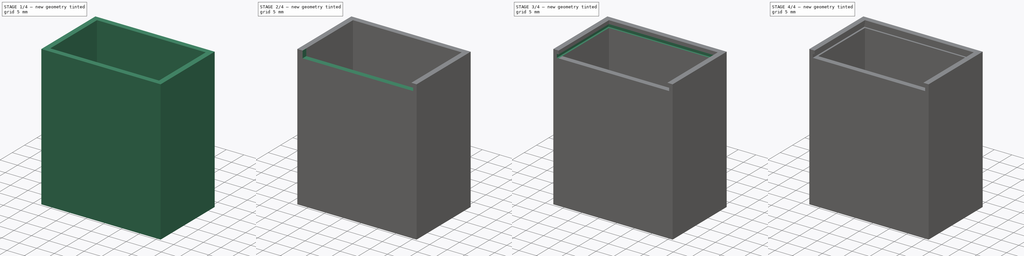
[diagram: build sequence overview — one tinted view per stage of 4, left to right]
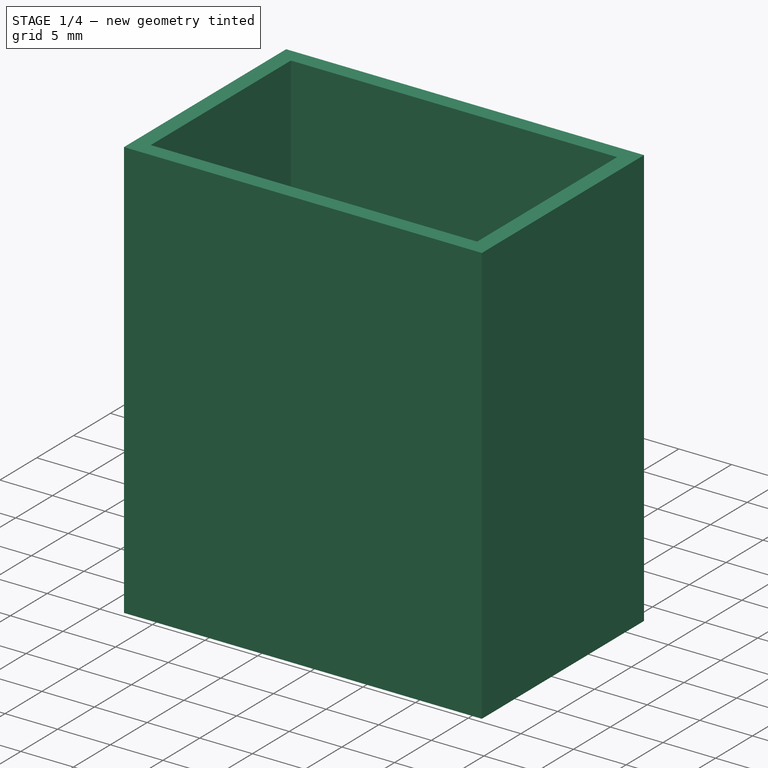
[diagram: stage 1 of 4 — iso view after this stage's code; geometry added in this stage tinted green]
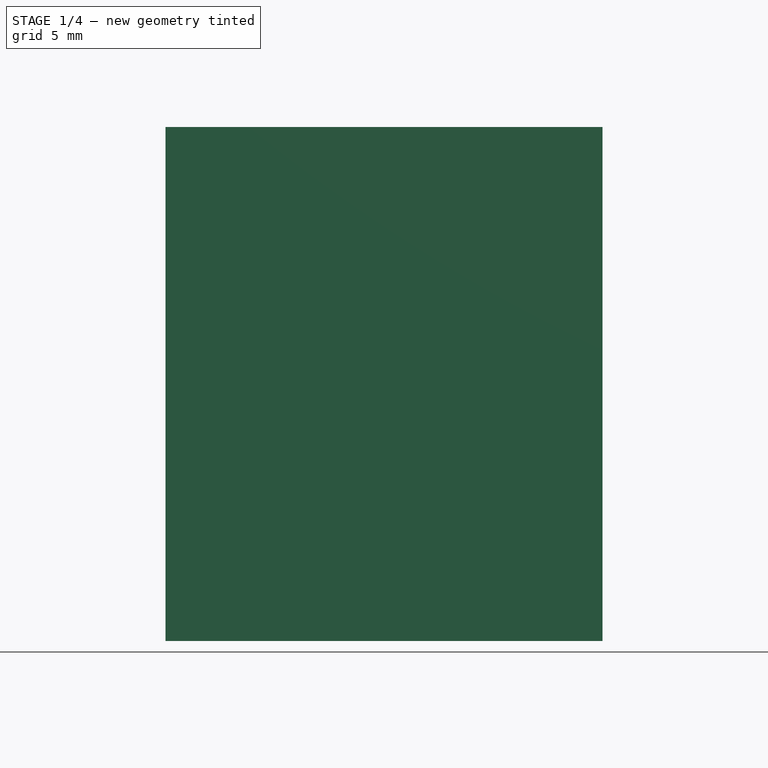
[diagram: stage 1 of 4 — front view after this stage's code; geometry added in this stage tinted green]
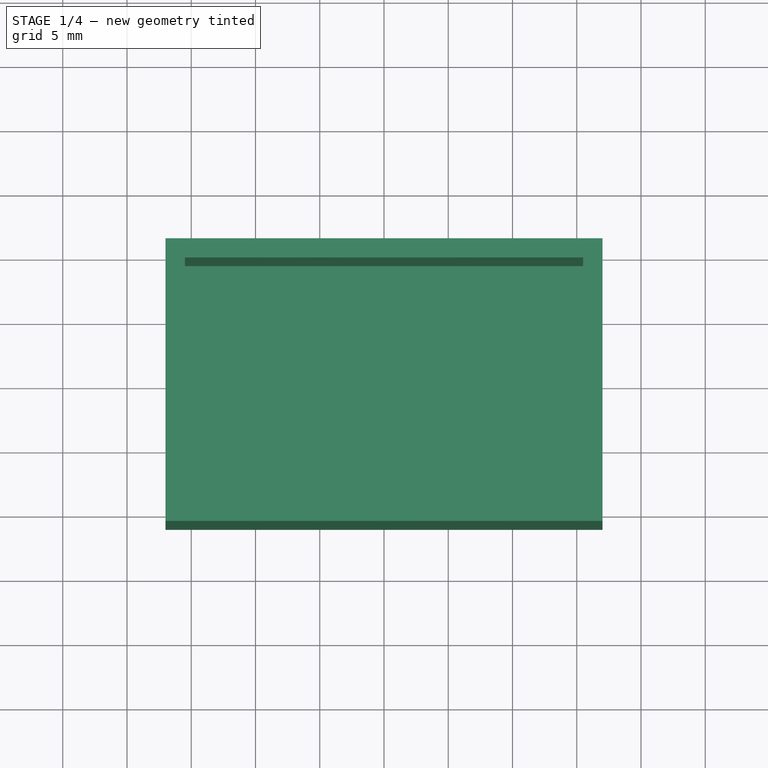
[diagram: stage 1 of 4 — top view after this stage's code; geometry added in this stage tinted green]
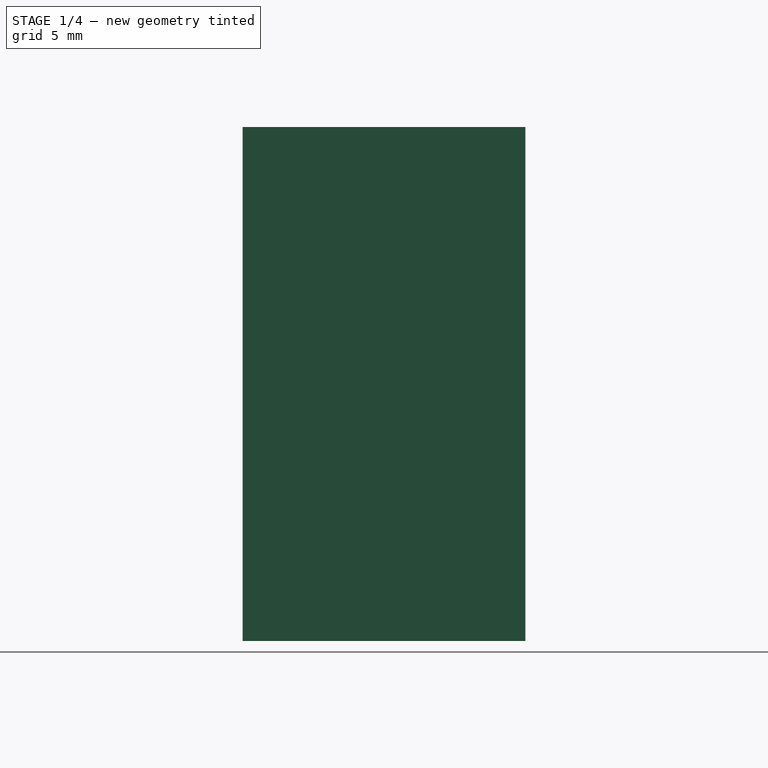
[diagram: stage 1 of 4 — right view after this stage's code; geometry added in this stage tinted green]
FCSTD DOCUMENT  (FreeCAD 0.18R4 (GitTag))
Label: IrDroid_Case
License: All rights reserved
LicenseURL: http://en.wikipedia.org/wiki/All_rights_reserved
objects: Sketcher::SketchObject×9, PartDesign::Pocket×7, PartDesign::Pad×2, PartDesign::Body×2, PartDesign::Mirrored×1
note: 30 computed .brp shape members not serialized (recipe doc carries the construction recipe); baked Part::Feature solids carry a one-line shape summary decoded from their .brp

FEATURE [Sketcher::SketchObject] Sketch
  MapMode = 5
  Support = -> [XY_Plane]
  sketch-geometry (4):
    g0: LineSegment StartX=-17 StartY=11 StartZ=0 EndX=17 EndY=11 EndZ=0
    g1: LineSegment StartX=17 StartY=11 StartZ=0 EndX=17 EndY=-11 EndZ=0
    g2: LineSegment StartX=17 StartY=-11 StartZ=0 EndX=-17 EndY=-11 EndZ=0
    g3: LineSegment StartX=-17 StartY=-11 StartZ=0 EndX=-17 EndY=11 EndZ=0
  constraints (11):
    c: Coincident(g0,g1)
    c: Coincident(g1,g2)
    c: Coincident(g2,g3)
    c: Coincident(g3,g0)
    c: Horizontal(g0)
    c: Horizontal(g2)
    c: Vertical(g1)
    c: Vertical(g3)
    c: DistanceX(g0,g0) = 34
    c: DistanceY(g1,g1) = 22
    c: Symmetric(g0,g2,g-1)
FEATURE [PartDesign::Pad] Pad
  Length = 40
  Length2 = 100
  Profile = -> Sketch
  Type = 0
FEATURE [Sketcher::SketchObject] Sketch001
  ExternalGeometry = -> [Pad]
  MapMode = 5
  Placement = pos=(0,0,40) rot=(0,0,1;0rad)
  Support = -> [Pad]
  sketch-geometry (4):
    g0: LineSegment StartX=-15.5 StartY=9.5 StartZ=0 EndX=15.5 EndY=9.5 EndZ=0
    g1: LineSegment StartX=15.5 StartY=9.5 StartZ=0 EndX=15.5 EndY=-9.5 EndZ=0
    g2: LineSegment StartX=15.5 StartY=-9.5 StartZ=0 EndX=-15.5 EndY=-9.5 EndZ=0
    g3: LineSegment StartX=-15.5 StartY=-9.5 StartZ=0 EndX=-15.5 EndY=9.5 EndZ=0
  constraints (12):
    c: Coincident(g0,g1)
    c: Coincident(g1,g2)
    c: Coincident(g2,g3)
    c: Coincident(g3,g0)
    c: Horizontal(g0)
    c: Horizontal(g2)
    c: Vertical(g1)
    c: Vertical(g3)
    c: DistanceX(g0,g0) = 31
    c: DistanceY(g1,g1) = 19
    c: DistanceX(g0,g-4) = 1.5
    c: DistanceY(g0,g-4) = 1.5
FEATURE [PartDesign::Pocket] Pocket
  BaseFeature = -> Pad
  Length = 38.5
  Length2 = 100
  Profile = -> Sketch001
  Type = 0
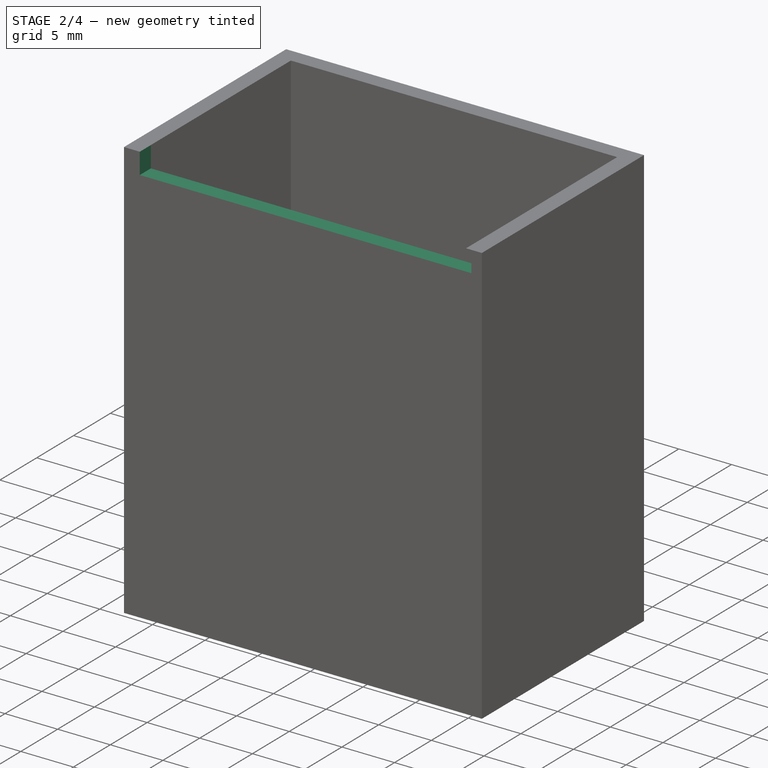
[diagram: stage 2 of 4 — iso view after this stage's code; geometry added in this stage tinted green]
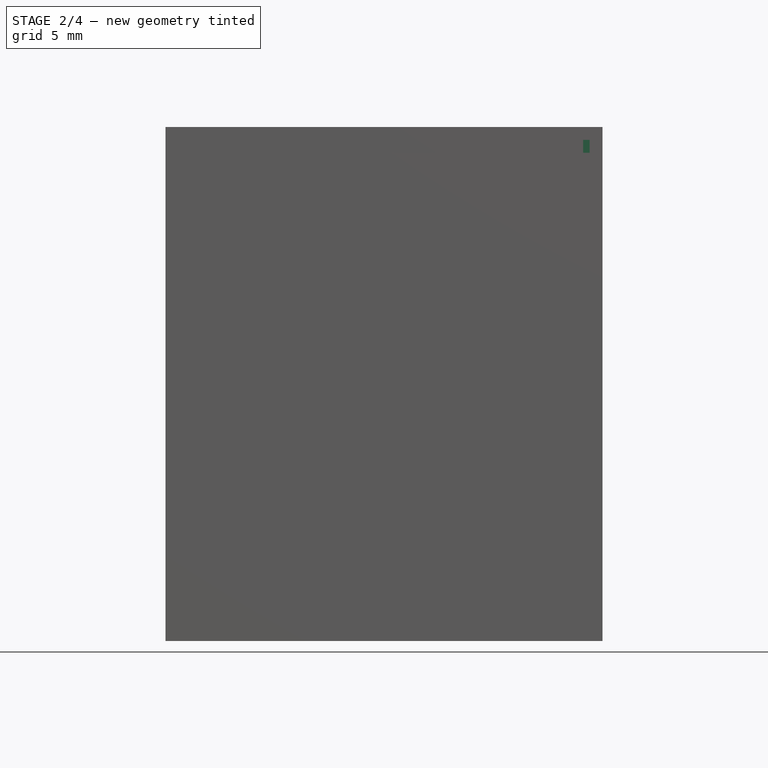
[diagram: stage 2 of 4 — front view after this stage's code; geometry added in this stage tinted green]
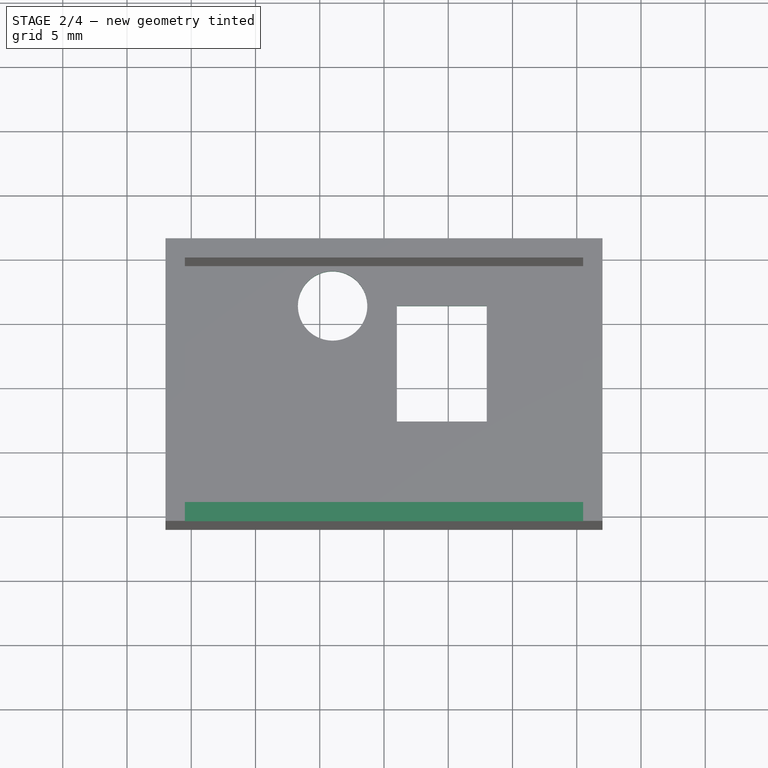
[diagram: stage 2 of 4 — top view after this stage's code; geometry added in this stage tinted green]
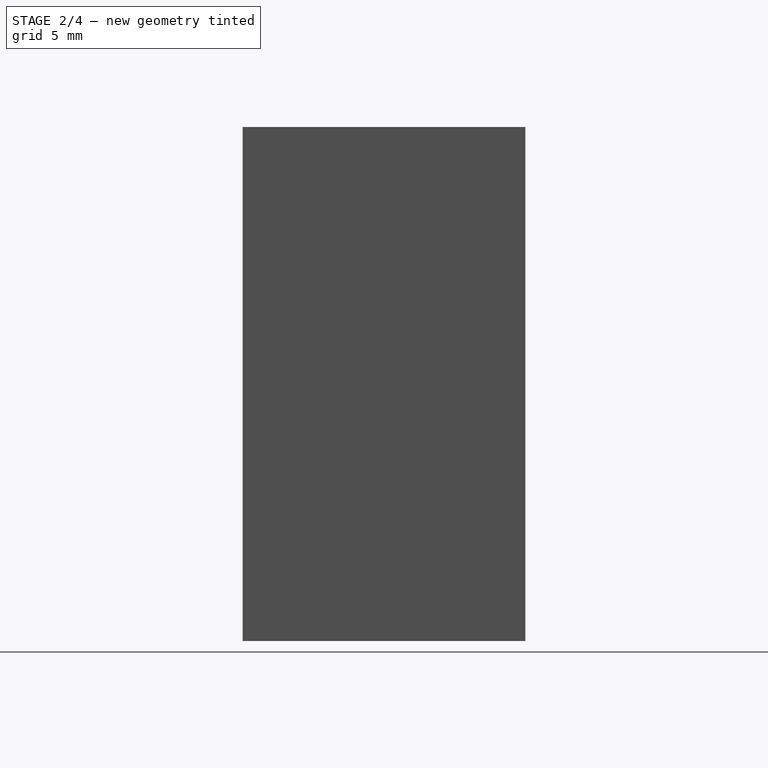
[diagram: stage 2 of 4 — right view after this stage's code; geometry added in this stage tinted green]
FEATURE [Sketcher::SketchObject] Sketch002
  ExternalGeometry = -> [Pocket]
  MapMode = 5
  Placement = pos=(0,0,0) rot=(1,0,0;3.14159rad)
  Support = -> [Pocket]
  sketch-geometry (5):
    g0: LineSegment StartX=8 StartY=-6.4 StartZ=0 EndX=1 EndY=-6.4 EndZ=0
    g1: LineSegment StartX=1 StartY=-6.4 StartZ=0 EndX=1 EndY=2.6 EndZ=0
    g2: LineSegment StartX=1 StartY=2.6 StartZ=0 EndX=8 EndY=2.6 EndZ=0
    g3: LineSegment StartX=8 StartY=2.6 StartZ=0 EndX=8 EndY=-6.4 EndZ=0
    g4: Circle CenterX=-4 CenterY=-6.4 CenterZ=0 NormalX=0 NormalY=0 NormalZ=1 AngleXU=0 Radius=2.7
  constraints (15):
    c: Coincident(g0,g1)
    c: Coincident(g1,g2)
    c: Coincident(g2,g3)
    c: Coincident(g3,g0)
    c: Horizontal(g0)
    c: Horizontal(g2)
    c: Vertical(g1)
    c: Vertical(g3)
    c: DistanceY(g3,g3) = 9
    c: DistanceX(g2,g2) = 7
    c: DistanceY(g0,g-4) = -4.6
    c: DistanceX(g0,g-4) = 16
    c: Radius(g4) = 2.7
    c: DistanceX(g4,g0) = 12
    c: DistanceY(g-4,g4) = 4.6
FEATURE [PartDesign::Pocket] Pocket001
  BaseFeature = -> Pocket
  Length = 5
  Length2 = 100
  Profile = -> Sketch002
  Type = 1
FEATURE [Sketcher::SketchObject] Sketch003
  ExternalGeometry = -> [Pocket001]
  MapMode = 5
  Placement = pos=(0,-11,0) rot=(1,0,0;1.5708rad)
  Support = -> [Pocket001]
  sketch-geometry (4):
    g0: LineSegment StartX=-15.5 StartY=40 StartZ=0 EndX=15.5 EndY=40 EndZ=0
    g1: LineSegment StartX=15.5 StartY=40 StartZ=0 EndX=15.5 EndY=38 EndZ=0
    g2: LineSegment StartX=15.5 StartY=38 StartZ=0 EndX=-15.5 EndY=38 EndZ=0
    g3: LineSegment StartX=-15.5 StartY=38 StartZ=0 EndX=-15.5 EndY=40 EndZ=0
  constraints (12):
    c: Coincident(g0,g1)
    c: Coincident(g1,g2)
    c: Coincident(g2,g3)
    c: Coincident(g3,g0)
    c: Horizontal(g0)
    c: Horizontal(g2)
    c: Vertical(g1)
    c: Vertical(g3)
    c: DistanceY(g1,g1) = 2
    c: DistanceY(g0,g-5) = 0
    c: DistanceX(g1,g-5) = 1.5
    c: DistanceX(g-4,g2) = 1.5
FEATURE [PartDesign::Pocket] Pocket002
  BaseFeature = -> Pocket001
  Length = 1.5
  Length2 = 100
  Profile = -> Sketch003
  Type = 0
FEATURE [Sketcher::SketchObject] Sketch004
  ExternalGeometry = -> [Pocket002]
  MapMode = 5
  Placement = pos=(15.5,0,0) rot=(0.57735,-0.57735,-0.57735;2.0944rad)
  Support = -> [Pocket002]
  sketch-geometry (4):
    g0: LineSegment StartX=-10 StartY=39 StartZ=0 EndX=11 EndY=39 EndZ=0
    g1: LineSegment StartX=11 StartY=39 StartZ=0 EndX=11 EndY=38 EndZ=0
    g2: LineSegment StartX=11 StartY=38 StartZ=0 EndX=-10 EndY=38 EndZ=0
    g3: LineSegment StartX=-10 StartY=38 StartZ=0 EndX=-10 EndY=39 EndZ=0
  constraints (12):
    c: Coincident(g0,g1)
    c: Coincident(g1,g2)
    c: Coincident(g2,g3)
    c: Coincident(g3,g0)
    c: Horizontal(g0)
    c: Horizontal(g2)
    c: Vertical(g1)
    c: Vertical(g3)
    c: DistanceY(g1,g1) = 1
    c: DistanceX(g-4,g0) = -0.5
    c: DistanceY(g-4,g0) = 37.5
    c: DistanceX(g0,g0) = 21
FEATURE [PartDesign::Pocket] Pocket003
  BaseFeature = -> Pocket002
  Length = 0.5
  Length2 = 100
  Profile = -> Sketch004
  Type = 0
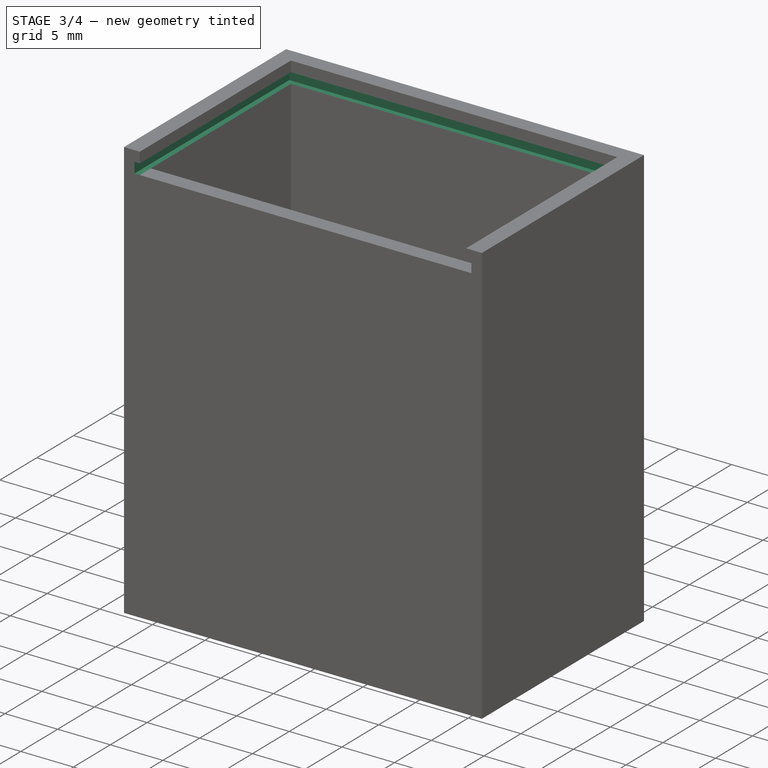
[diagram: stage 3 of 4 — iso view after this stage's code; geometry added in this stage tinted green]
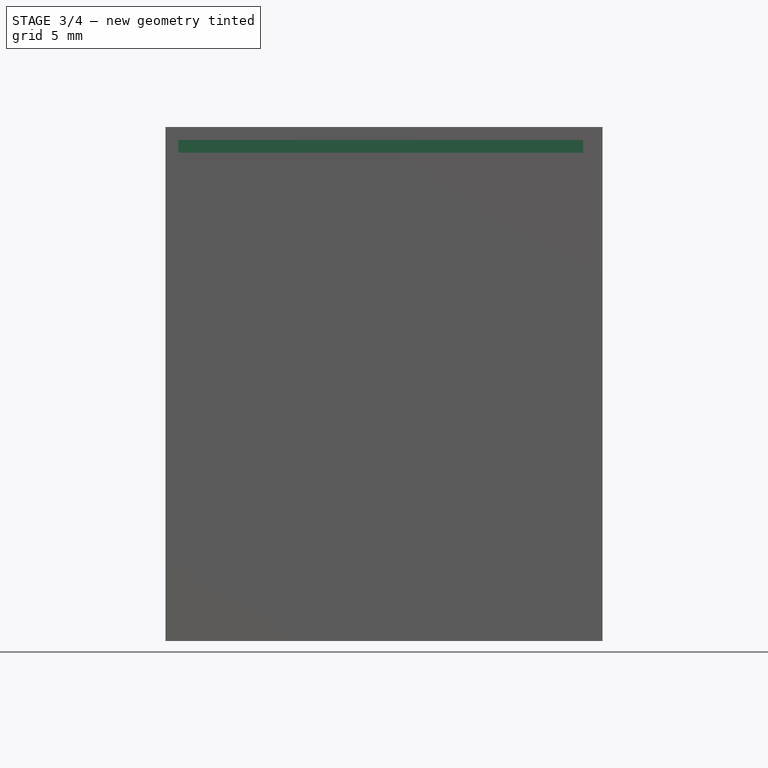
[diagram: stage 3 of 4 — front view after this stage's code; geometry added in this stage tinted green]
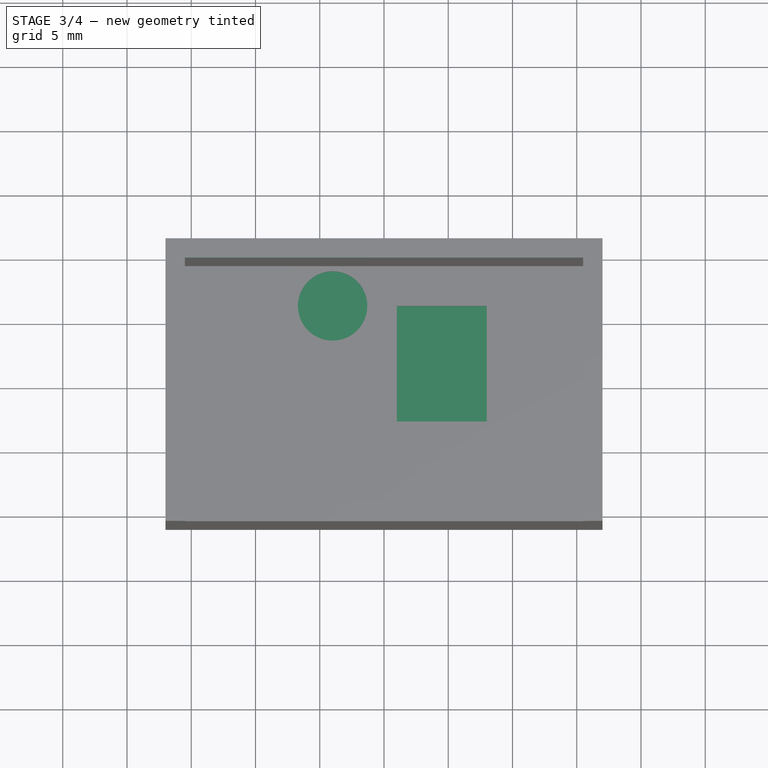
[diagram: stage 3 of 4 — top view after this stage's code; geometry added in this stage tinted green]
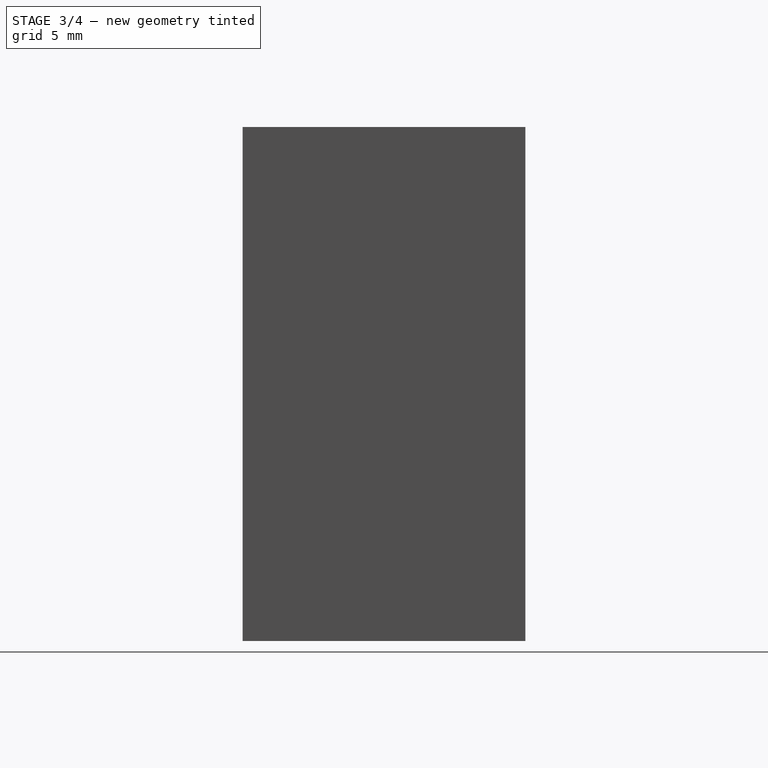
[diagram: stage 3 of 4 — right view after this stage's code; geometry added in this stage tinted green]
FEATURE [PartDesign::Mirrored] Mirrored
  BaseFeature = -> Pocket003
  MirrorPlane = -> YZ_Plane
  Originals = -> [Pocket003]
FEATURE [Sketcher::SketchObject] Sketch006
  MapMode = 5
  Support = -> [XY_Plane001]
  sketch-geometry (4):
    g0: LineSegment StartX=-15.9 StartY=9.9 StartZ=0 EndX=15.9 EndY=9.9 EndZ=0
    g1: LineSegment StartX=15.9 StartY=9.9 StartZ=0 EndX=15.9 EndY=-9.9 EndZ=0
    g2: LineSegment StartX=15.9 StartY=-9.9 StartZ=0 EndX=-15.9 EndY=-9.9 EndZ=0
    g3: LineSegment StartX=-15.9 StartY=-9.9 StartZ=0 EndX=-15.9 EndY=9.9 EndZ=0
  constraints (11):
    c: Coincident(g0,g1)
    c: Coincident(g1,g2)
    c: Coincident(g2,g3)
    c: Coincident(g3,g0)
    c: Horizontal(g0)
    c: Horizontal(g2)
    c: Vertical(g1)
    c: Vertical(g3)
    c: DistanceX(g0,g0) = 31.8
    c: DistanceY(g1,g1) = 19.8
    c: Symmetric(g0,g2,g-1)
FEATURE [PartDesign::Pad] Pad001
  Length = 0.8
  Length2 = 100
  Profile = -> Sketch006
  Type = 0
FEATURE [PartDesign::Body] Body001  label="Top"
  Group = -> [Sketch006,Pad001,Sketch007,Pocket005,Sketch008,Pocket006]
  Origin = -> Origin001
  Tip = -> Pocket006
FEATURE [Sketcher::SketchObject] Sketch009
  ExternalGeometry = -> [Mirrored]
  MapMode = 5
  Placement = pos=(0,9.5,0) rot=(1,0,0;1.5708rad)
  Support = -> [Mirrored]
  sketch-geometry (4):
    g0: LineSegment StartX=-16 StartY=39 StartZ=0 EndX=16 EndY=39 EndZ=0
    g1: LineSegment StartX=16 StartY=39 StartZ=0 EndX=16 EndY=38 EndZ=0
    g2: LineSegment StartX=16 StartY=38 StartZ=0 EndX=-16 EndY=38 EndZ=0
    g3: LineSegment StartX=-16 StartY=38 StartZ=0 EndX=-16 EndY=39 EndZ=0
  constraints (12):
    c: Coincident(g0,g1)
    c: Coincident(g1,g2)
    c: Coincident(g2,g3)
    c: Coincident(g3,g0)
    c: Horizontal(g0)
    c: Horizontal(g2)
    c: Vertical(g1)
    c: Vertical(g3)
    c: DistanceY(g1,g1) = 1
    c: DistanceX(g-3,g0) = -0.5
    c: DistanceX(g0,g0) = 32
    c: DistanceY(g-1,g0) = 39
FEATURE [PartDesign::Pocket] Pocket007
  BaseFeature = -> Mirrored
  Length = 0.5
  Length2 = 100
  Profile = -> Sketch009
  Type = 0
FEATURE [PartDesign::Body] Body  label="Case"
  Group = -> [Sketch,Pad,Sketch001,Pocket,Sketch002,Pocket001,Sketch003,Pocket002,Sketch004,Pocket003,Mirrored,Sketch009,Pocket007]
  Origin = -> Origin
  Tip = -> Pocket007
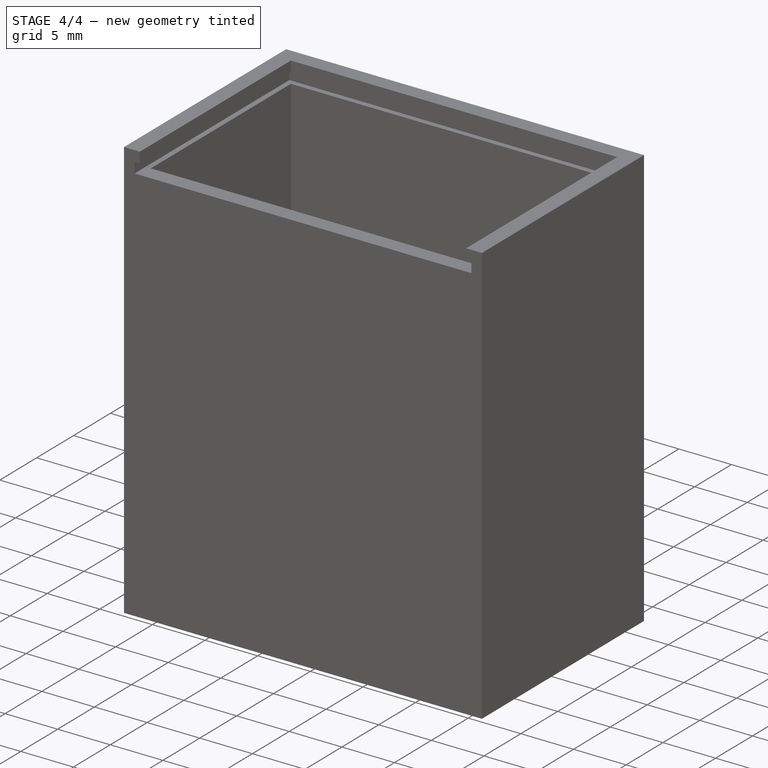
[diagram: stage 4 of 4 — iso view after this stage's code; geometry added in this stage tinted green]
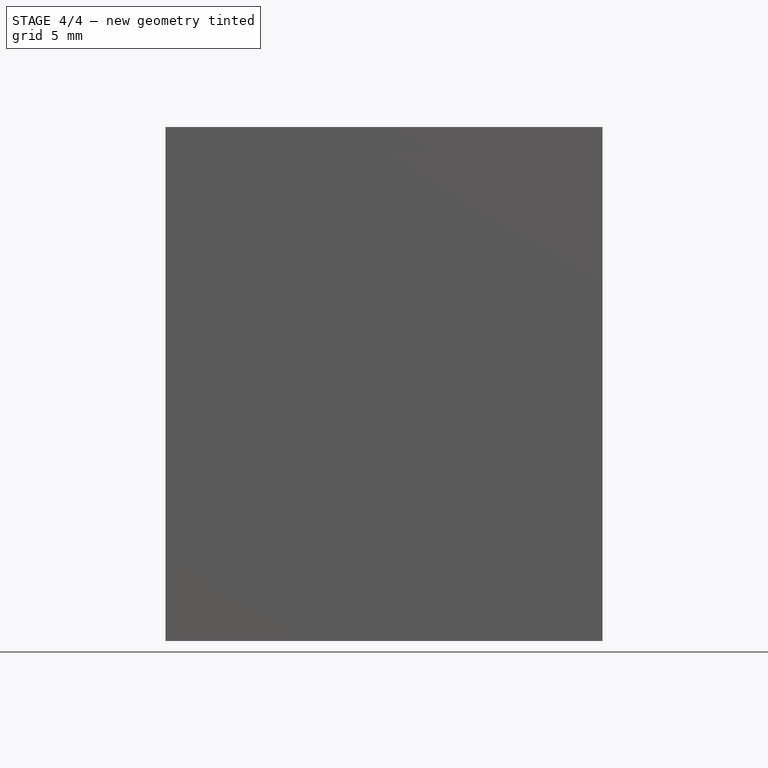
[diagram: stage 4 of 4 — front view after this stage's code; geometry added in this stage tinted green]
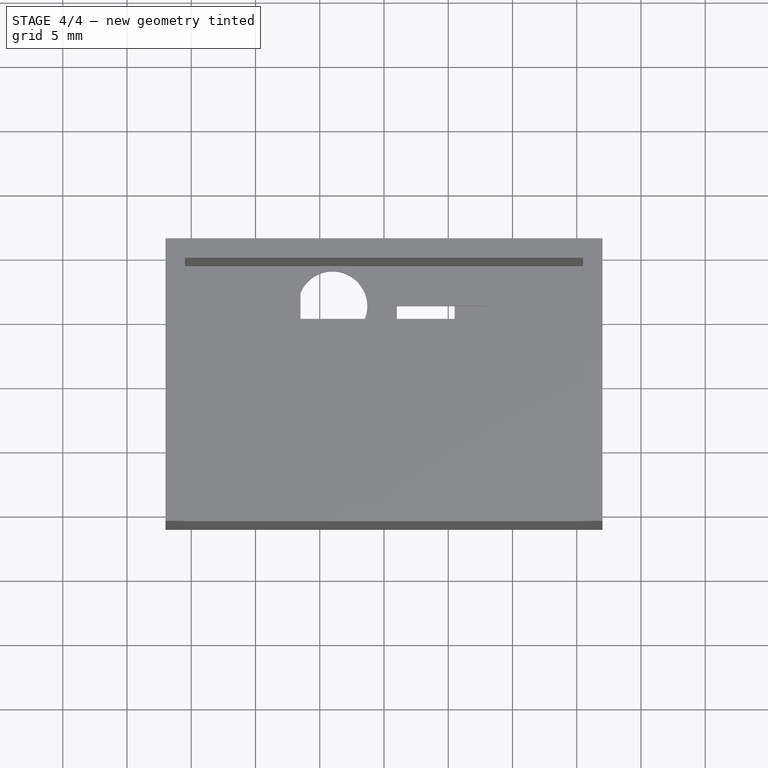
[diagram: stage 4 of 4 — top view after this stage's code; geometry added in this stage tinted green]
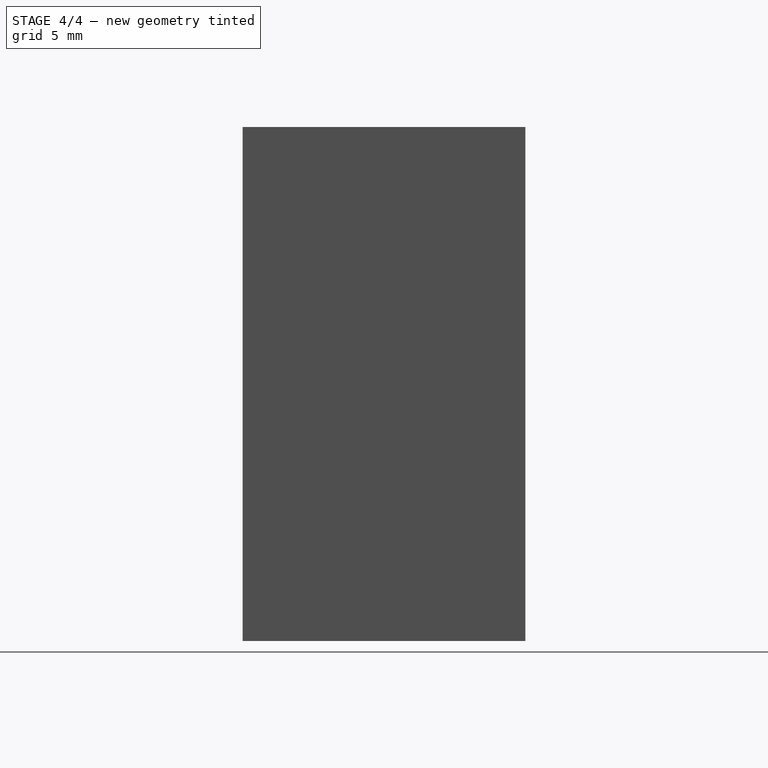
[diagram: stage 4 of 4 — right view after this stage's code; geometry added in this stage tinted green]
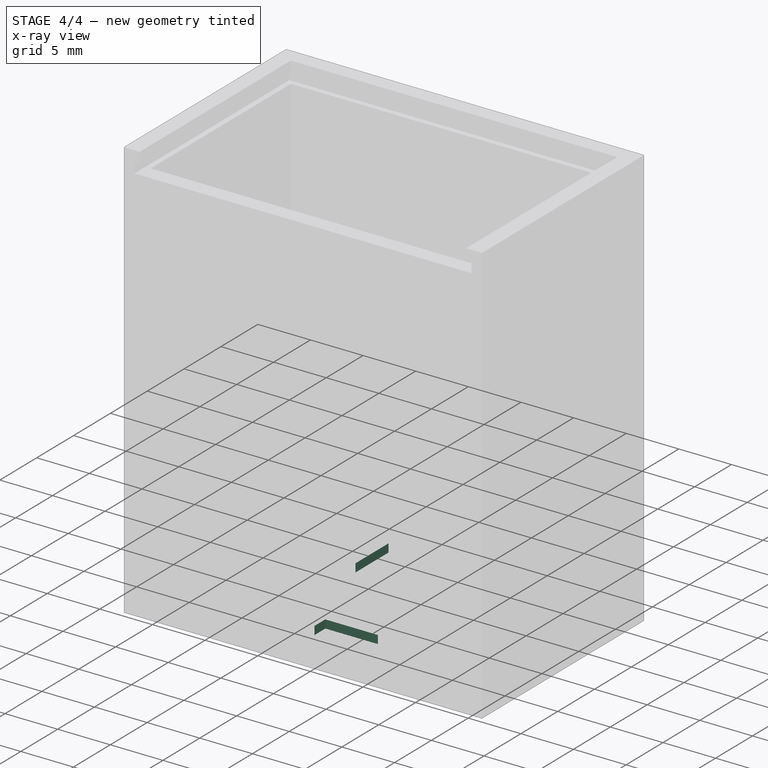
[diagram: stage 4 of 4 — x-ray composite at the iso view; earlier geometry ghosted, this stage's added geometry solid]
FEATURE [Sketcher::SketchObject] Sketch007
  ExternalGeometry = -> [Pad001]
  MapMode = 5
  Placement = pos=(0,0,0.8) rot=(0,0,1;0rad)
  Support = -> [Pad001]
  sketch-geometry (4):
    g0: LineSegment StartX=-6.5 StartY=9.9 StartZ=0 EndX=5.5 EndY=9.9 EndZ=0
    g1: LineSegment StartX=5.5 StartY=9.9 StartZ=0 EndX=5.5 EndY=5.4 EndZ=0
    g2: LineSegment StartX=5.5 StartY=5.4 StartZ=0 EndX=-6.5 EndY=5.4 EndZ=0
    g3: LineSegment StartX=-6.5 StartY=5.4 StartZ=0 EndX=-6.5 EndY=9.9 EndZ=0
  constraints (12):
    c: Coincident(g0,g1)
    c: Coincident(g1,g2)
    c: Coincident(g2,g3)
    c: Coincident(g3,g0)
    c: Horizontal(g0)
    c: Horizontal(g2)
    c: Vertical(g1)
    c: Vertical(g3)
    c: DistanceY(g1,g1) = 4.5
    c: DistanceX(g2,g2) = 12
    c: DistanceX(g2,g-1) = 6.5
    c: DistanceY(g0,g-3) = 0
FEATURE [PartDesign::Pocket] Pocket005
  BaseFeature = -> Pad001
  Length = 5
  Length2 = 100
  Profile = -> Sketch007
  Type = 1
FEATURE [Sketcher::SketchObject] Sketch008
  ExternalGeometry = -> [Pocket005]
  MapMode = 5
  Placement = pos=(0,0,0.8) rot=(0,0,1;0rad)
  Support = -> [Pocket005]
  sketch-geometry (4):
    g0: LineSegment StartX=-2.5 StartY=-4.4 StartZ=0 EndX=2.5 EndY=-4.4 EndZ=0
    g1: LineSegment StartX=2.5 StartY=-4.4 StartZ=0 EndX=2.5 EndY=-5.9 EndZ=0
    g2: LineSegment StartX=2.5 StartY=-5.9 StartZ=0 EndX=-2.5 EndY=-5.9 EndZ=0
    g3: LineSegment StartX=-2.5 StartY=-5.9 StartZ=0 EndX=-2.5 EndY=-4.4 EndZ=0
  constraints (12):
    c: Coincident(g0,g1)
    c: Coincident(g1,g2)
    c: Coincident(g2,g3)
    c: Coincident(g3,g0)
    c: Horizontal(g0)
    c: Horizontal(g2)
    c: Vertical(g1)
    c: Vertical(g3)
    c: DistanceX(g0,g0) = 5
    c: DistanceY(g1,g1) = 1.5
    c: DistanceX(g2,g-1) = 2.5
    c: DistanceY(g-3,g1) = 4
FEATURE [PartDesign::Pocket] Pocket006
  BaseFeature = -> Pocket005
  Length = 5
  Length2 = 100
  Profile = -> Sketch008
  Type = 1
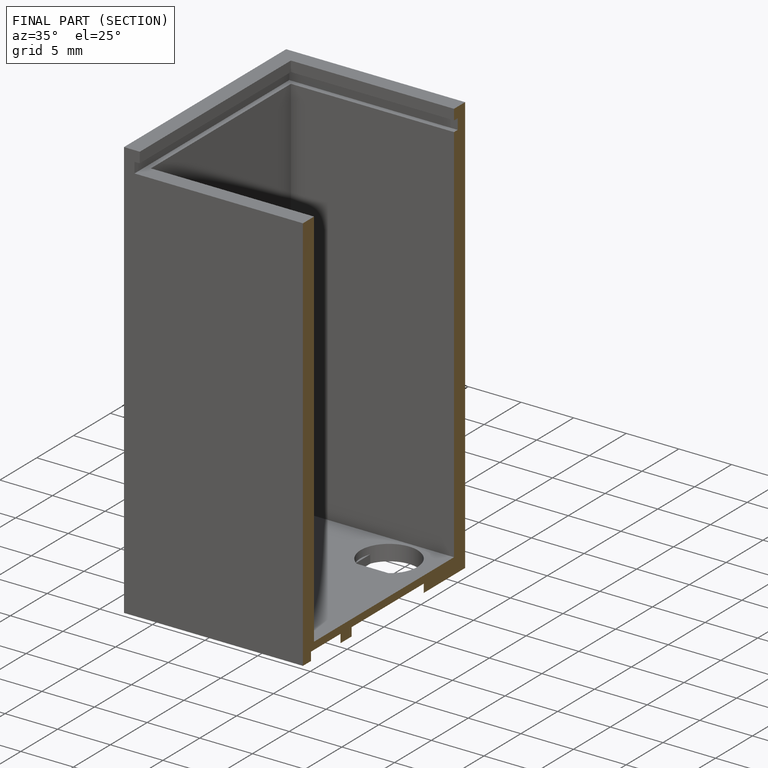
[diagram: finished part — half-section view (interior)]
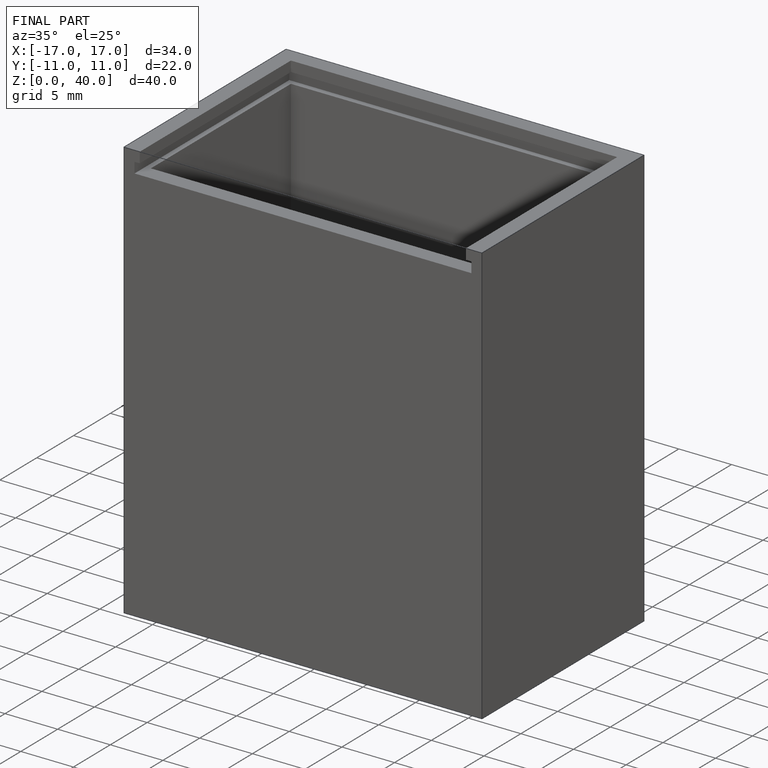
[diagram: finished part — iso view with bounding-box wireframe]
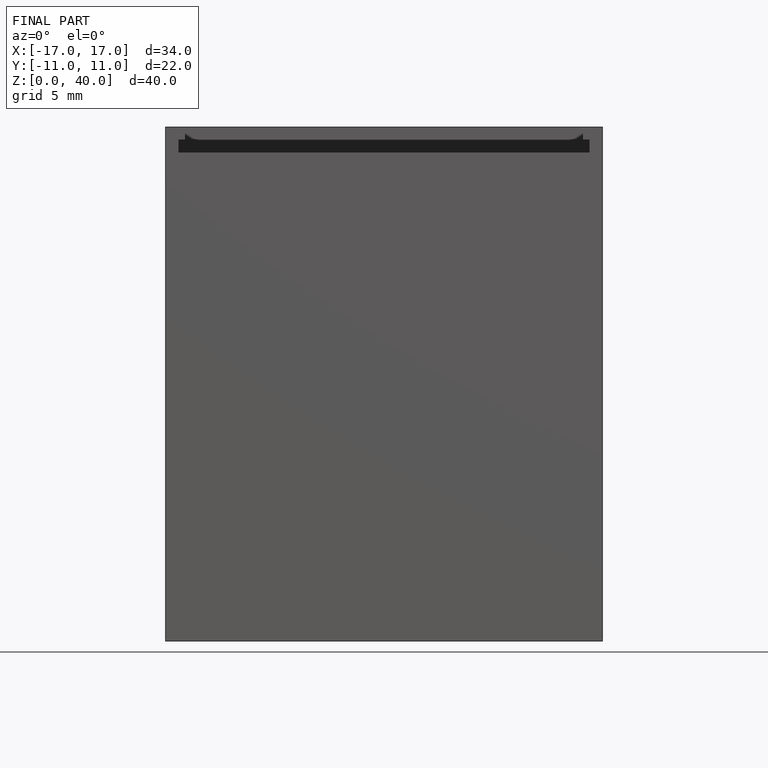
[diagram: finished part — front view with bounding-box wireframe]
